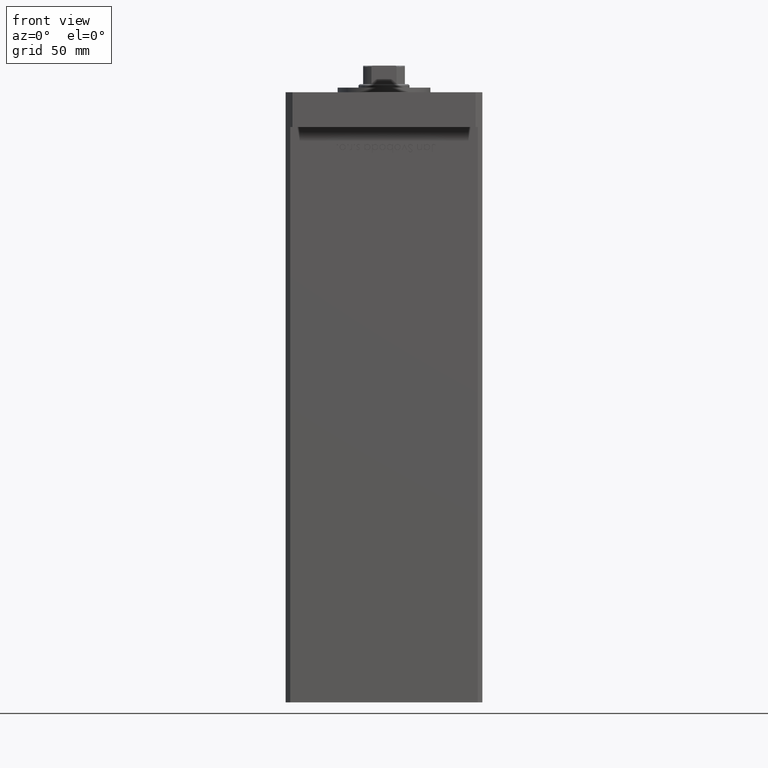
[diagram: clean part render]
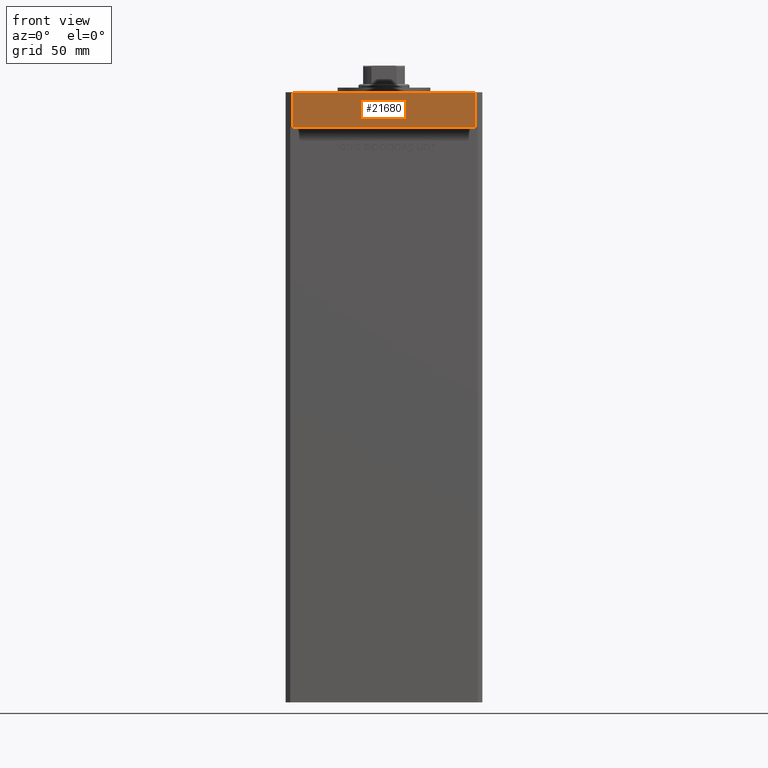
[diagram: same view with one face highlighted and labeled with its STEP entity id]
A machine part, front view. The second image highlights one B-rep face of the part: STEP entity #21680.
In plain terms, the highlighted planar face has unit normal (-0, 1, 0).
Its self-contained STEP definition (entity closure, byte-faithful):
#623 = ORIENTED_EDGE ( 'NONE', *, *, #1298, .F. ) ;
#1298 = EDGE_CURVE ( 'NONE', #23830, #2094, #34227, .T. ) ;
#1844 = ORIENTED_EDGE ( 'NONE', *, *, #52782, .T. ) ;
#2094 = VERTEX_POINT ( 'NONE', #30404 ) ;
#3529 = ORIENTED_EDGE ( 'NONE', *, *, #24728, .F. ) ;
#4058 = DIRECTION ( 'NONE',  ( -0.000000000000000000, -0.000000000000000000, -1.000000000000000000 ) ) ;
#4642 = LINE ( 'NONE', #13292, #17847 ) ;
#6116 = ORIENTED_EDGE ( 'NONE', *, *, #48395, .T. ) ;
#7237 = LINE ( 'NONE', #36214, #47282 ) ;
#8565 = VECTOR ( 'NONE', #4058, 1000.000000000000000 ) ;
#11850 = CARTESIAN_POINT ( 'NONE',  ( -39.50000000000000000, -65.00000000000000000, 15.00000000000000000 ) ) ;
#13179 = LINE ( 'NONE', #41152, #8565 ) ;
#13292 = CARTESIAN_POINT ( 'NONE',  ( -39.50000000000000000, -65.00000000000000000, 0.000000000000000000 ) ) ;
#14719 = CARTESIAN_POINT ( 'NONE',  ( -39.50000000000000000, -65.00000000000000000, 15.00000000000000000 ) ) ;
#15383 = DIRECTION ( 'NONE',  ( -1.405345600791337191E-15, 1.000000000000000000, 0.000000000000000000 ) ) ;
#15620 = DIRECTION ( 'NONE',  ( -0.000000000000000000, -0.000000000000000000, -1.000000000000000000 ) ) ;
#17084 = VECTOR ( 'NONE', #51547, 1000.000000000000000 ) ;
#17847 = VECTOR ( 'NONE', #29816, 1000.000000000000000 ) ;
#18553 = VERTEX_POINT ( 'NONE', #22997 ) ;
#18673 = CARTESIAN_POINT ( 'NONE',  ( 39.50000000000001421, -64.99999999999988631, 0.000000000000000000 ) ) ;
#21680 = ADVANCED_FACE ( 'NONE', ( #46537 ), #48426, .F. ) ;
#22997 = CARTESIAN_POINT ( 'NONE',  ( -39.50000000000000000, -65.00000000000000000, 0.000000000000000000 ) ) ;
#23830 = VERTEX_POINT ( 'NONE', #43561 ) ;
#24728 = EDGE_CURVE ( 'NONE', #2094, #34622, #13179, .T. ) ;
#29816 = DIRECTION ( 'NONE',  ( 1.000000000000000000, 1.405345600791337191E-15, 0.000000000000000000 ) ) ;
#30404 = CARTESIAN_POINT ( 'NONE',  ( 39.50000000000001421, -64.99999999999988631, 15.00000000000000000 ) ) ;
#31122 = EDGE_LOOP ( 'NONE', ( #1844, #3529, #623, #6116 ) ) ;
#34227 = LINE ( 'NONE', #14719, #17084 ) ;
#34622 = VERTEX_POINT ( 'NONE', #18673 ) ;
#35976 = DIRECTION ( 'NONE',  ( -1.000000000000000000, -1.405345600791337191E-15, 0.000000000000000000 ) ) ;
#36214 = CARTESIAN_POINT ( 'NONE',  ( -39.50000000000000000, -65.00000000000000000, 15.00000000000000000 ) ) ;
#39562 = AXIS2_PLACEMENT_3D ( 'NONE', #11850, #15383, #35976 ) ;
#41152 = CARTESIAN_POINT ( 'NONE',  ( 39.50000000000001421, -64.99999999999988631, 15.00000000000000000 ) ) ;
#43561 = CARTESIAN_POINT ( 'NONE',  ( -39.50000000000000000, -65.00000000000000000, 15.00000000000000000 ) ) ;
#46537 = FACE_OUTER_BOUND ( 'NONE', #31122, .T. ) ;
#47282 = VECTOR ( 'NONE', #15620, 1000.000000000000000 ) ;
#48395 = EDGE_CURVE ( 'NONE', #23830, #18553, #7237, .T. ) ;
#48426 = PLANE ( 'NONE',  #39562 ) ;
#51547 = DIRECTION ( 'NONE',  ( 1.000000000000000000, 1.405345600791337191E-15, 0.000000000000000000 ) ) ;
#52782 = EDGE_CURVE ( 'NONE', #18553, #34622, #4642, .T. ) ;